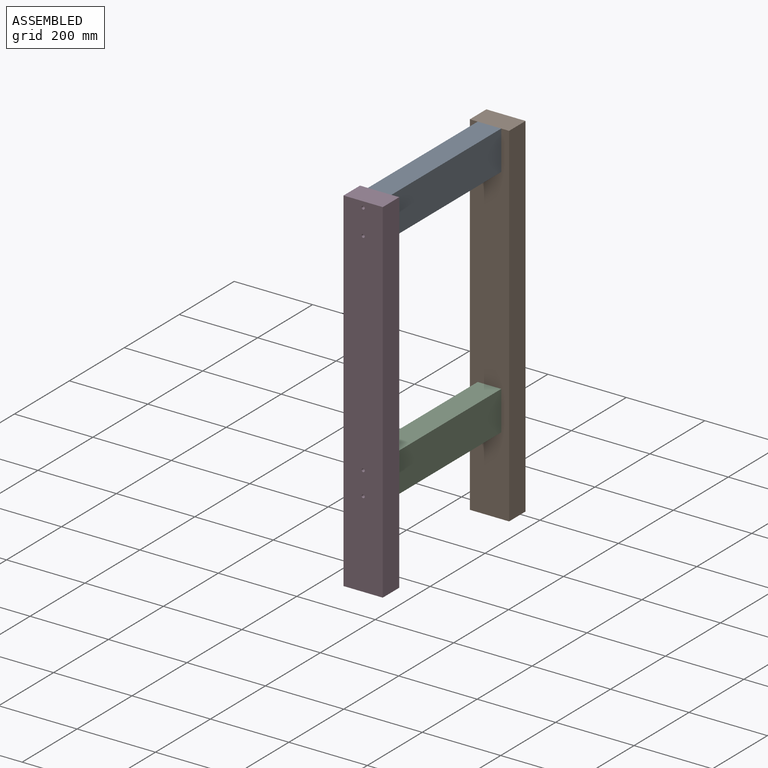
[diagram: assembled view]
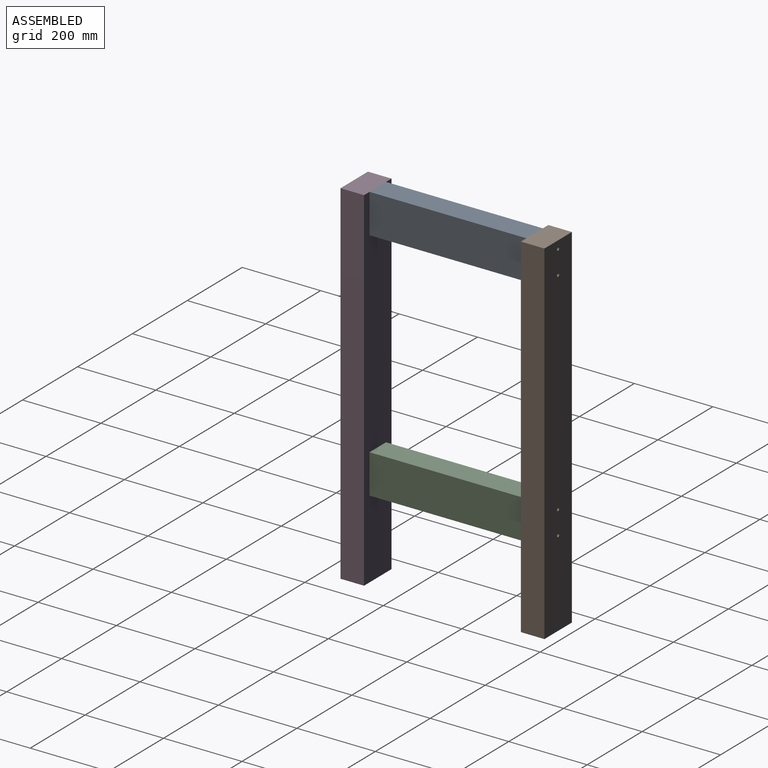
[diagram: assembled view, second angle]
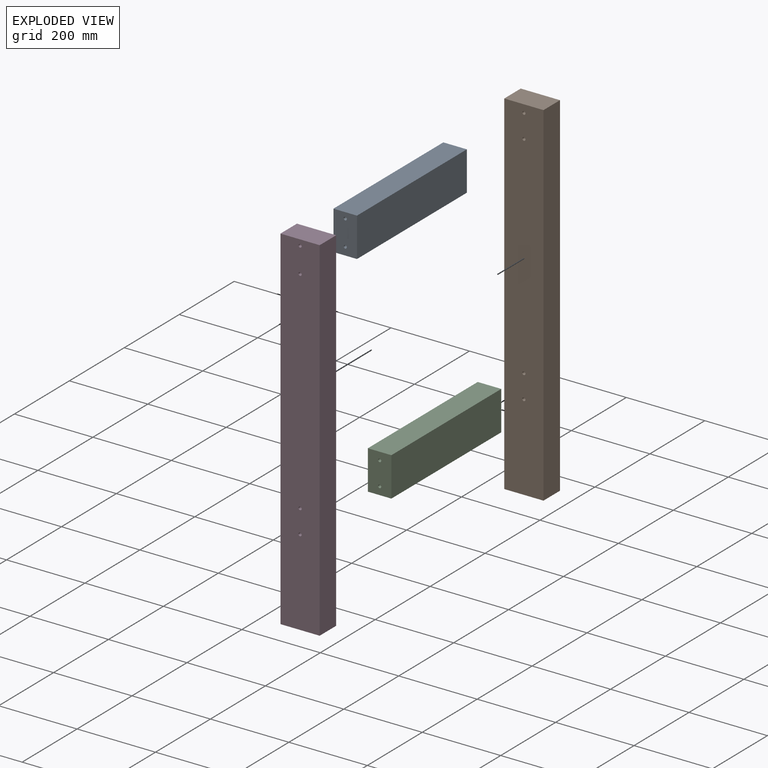
[diagram: exploded view]
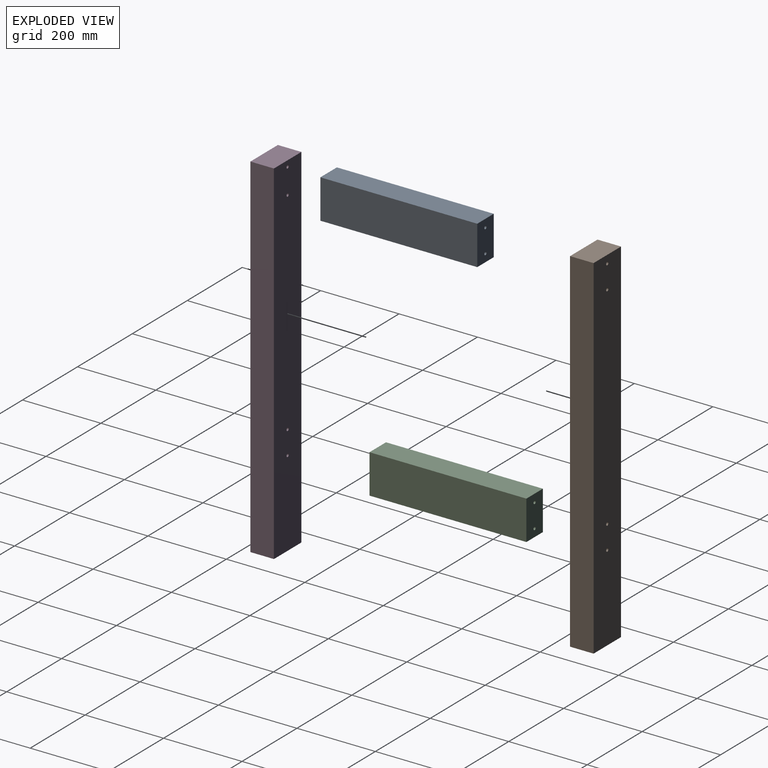
[diagram: exploded view, second angle]
ASSEMBLY  parts=4 mates=3
PART A: 14 faces, bbox 60x400x100 mm
  f0: plane 400x60mm, normal (0,0,1), area 24000mm2, adj f1,f3,f4,f5
  f1: plane 400x100mm, normal (-1,0,0), area 40000mm2, adj f0,f2,f4,f5
  f2: plane 400x60mm, normal (0,0,-1), area 24000mm2, adj f1,f3,f4,f5
  f3: plane 400x100mm, normal (1,0,0), area 40000mm2, adj f0,f2,f4,f5
  f4: plane 100x60mm, normal (0,-1,0), area 5899.5mm2, adj f0,f1,f2,f3,f10,f12
  f5: plane 100x60mm, normal (0,1,0), area 5899.5mm2, adj f0,f1,f2,f3,f6,f8
  f6: cylinder r=4mm len=50mm, axis (0,1,0), area 1256.6mm2, adj f5,f7
  f7: plane 8x8mm, normal (0,1,0), area 50.3mm2, adj f6
  f8: cylinder r=4mm len=50mm, axis (0,1,0), area 1256.6mm2, adj f5,f9
  f9: plane 8x8mm, normal (0,1,0), area 50.3mm2, adj f8
  f10: cylinder r=4mm len=40mm, axis (0,-1,0), area 1005.3mm2, adj f4,f11
  f11: plane 8x8mm, normal (0,-1,0), area 50.3mm2, adj f10
  f12: cylinder r=4mm len=40mm, axis (0,-1,0), area 1005.3mm2, adj f4,f13
  f13: plane 8x8mm, normal (0,-1,0), area 50.3mm2, adj f12
PART B: 10 faces, bbox 100x60x900 mm
  f0: plane 900x60mm, normal (1,0,0), area 54000mm2, adj f1,f3,f4,f5
  f1: plane 100x60mm, normal (0,0,1), area 6000mm2, adj f0,f2,f4,f5
  f2: plane 900x60mm, normal (-1,0,0), area 54000mm2, adj f1,f3,f4,f5
  f3: plane 100x60mm, normal (0,0,-1), area 6000mm2, adj f0,f2,f4,f5
  f4: plane 900x100mm, normal (0,-1,0), area 89798.9mm2, adj f0,f1,f2,f3,f6,f7,f8,f9
  f5: plane 900x100mm, normal (0,1,0), area 89798.9mm2, adj f0,f1,f2,f3,f6,f7,f8,f9
  f6: cylinder r=4mm len=60mm, axis (0,1,0), area 1508mm2, adj f4,f5
  f7: cylinder r=4mm len=60mm, axis (0,1,0), area 1508mm2, adj f4,f5
  f8: cylinder r=4mm len=60mm, axis (0,1,0), area 1508mm2, adj f4,f5
  f9: cylinder r=4mm len=60mm, axis (0,1,0), area 1508mm2, adj f4,f5
PART C: 14 faces, bbox 60x400x100 mm
  f0: plane 400x60mm, normal (0,0,1), area 24000mm2, adj f1,f3,f4,f5
  f1: plane 400x100mm, normal (-1,0,0), area 40000mm2, adj f0,f2,f4,f5
  f2: plane 400x60mm, normal (0,0,-1), area 24000mm2, adj f1,f3,f4,f5
  f3: plane 400x100mm, normal (1,0,0), area 40000mm2, adj f0,f2,f4,f5
  f4: plane 100x60mm, normal (0,-1,0), area 5899.5mm2, adj f0,f1,f2,f3,f10,f12
  f5: plane 100x60mm, normal (0,1,0), area 5899.5mm2, adj f0,f1,f2,f3,f6,f8
  f6: cylinder r=4mm len=60mm, axis (0,1,0), area 1508mm2, adj f5,f7
  f7: plane 8x8mm, normal (0,1,0), area 50.3mm2, adj f6
  f8: cylinder r=4mm len=60mm, axis (0,1,0), area 1508mm2, adj f5,f9
  f9: plane 8x8mm, normal (0,1,0), area 50.3mm2, adj f8
  f10: cylinder r=4mm len=40mm, axis (0,-1,0), area 1005.3mm2, adj f4,f11
  f11: plane 8x8mm, normal (0,-1,0), area 50.3mm2, adj f10
  f12: cylinder r=4mm len=40mm, axis (0,-1,0), area 1005.3mm2, adj f4,f13
  f13: plane 8x8mm, normal (0,-1,0), area 50.3mm2, adj f12
PART D: 10 faces, bbox 100x60x900 mm
  f0: plane 100x60mm, normal (0,0,-1), area 6000mm2, adj f1,f3,f4,f5
  f1: plane 900x60mm, normal (-1,0,0), area 54000mm2, adj f0,f2,f3,f4
  f2: plane 100x60mm, normal (0,0,1), area 6000mm2, adj f1,f3,f4,f5
  f3: plane 900x100mm, normal (0,1,0), area 89798.9mm2, adj f0,f1,f2,f5,f6,f7,f8,f9
  f4: plane 900x100mm, normal (0,-1,0), area 89798.9mm2, adj f0,f1,f2,f5,f6,f7,f8,f9
  f5: plane 900x60mm, normal (1,0,0), area 54000mm2, adj f0,f2,f3,f4
  f6: cylinder r=4mm len=60mm, axis (0,-1,0), area 1508mm2, adj f3,f4
  f7: cylinder r=4mm len=60mm, axis (0,-1,0), area 1508mm2, adj f3,f4
  f8: cylinder r=4mm len=60mm, axis (0,-1,0), area 1508mm2, adj f3,f4
  f9: cylinder r=4mm len=60mm, axis (0,-1,0), area 1508mm2, adj f3,f4
PLACE A t=(968.01,-1547.28,-378.27)mm
PLACE B t=(968.01,-1547.28,-378.27)mm
PLACE C t=(968.01,-1547.28,-378.27)mm
PLACE D t=(968.01,-1547.28,-378.27)mm
MATE planar C.f4 <-> D.f3  axis (0,-1,0) through (720.18,-1469.84,-228.27)mm
MATE planar A.f4 <-> D.f3  axis (0,-1,0) through (720.18,-1469.84,471.73)mm
MATE planar B.f4 <-> A.f5  axis (0,-1,0) through (720.18,-1069.84,471.73)mm
